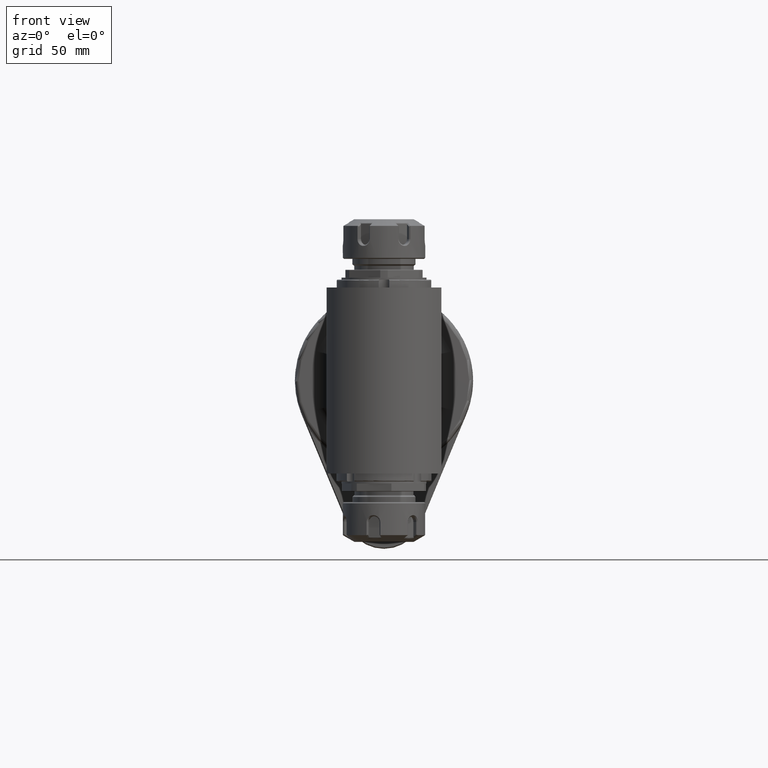
[diagram: clean part render]
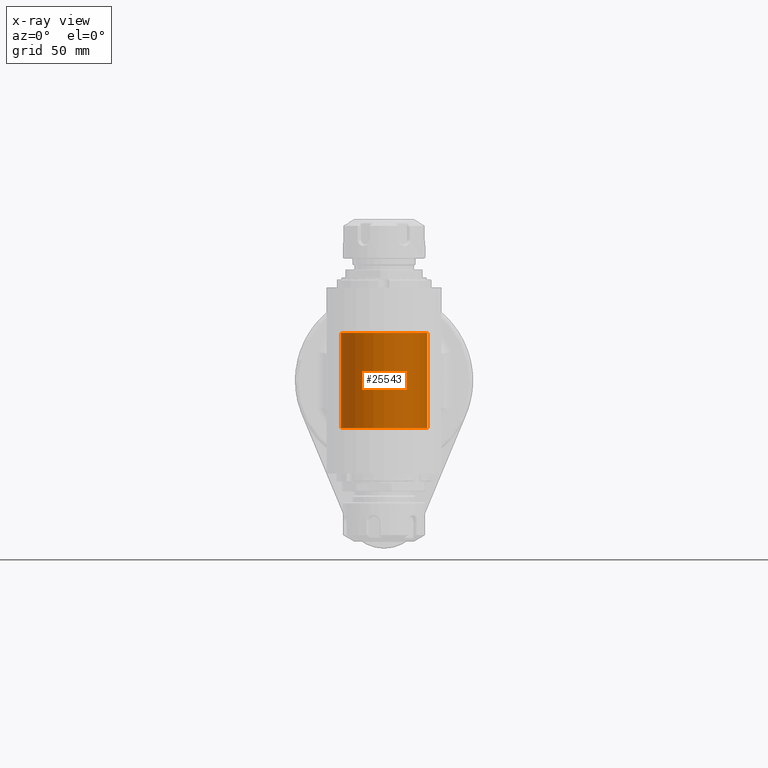
[diagram: x-ray — body ghosted, one internal face saturated and labeled with its STEP entity id]
A machine part, front view, then the same camera in x-ray: the body is ghosted and one INTERNAL B-rep face — a face not visible from any outside direction — is saturated and labeled: STEP entity #25543.
In plain terms, the highlighted cylindrical surface (bore or boss wall) has radius 22 mm, axis along (0, -0, 1).
Its self-contained STEP definition (entity closure, byte-faithful):
#1103=B_SPLINE_CURVE_WITH_KNOTS('',3,(#43034,#43035,#43036,#43037,#43038,
#43039,#43040,#43041,#43042,#43043,#43044,#43045,#43046,#43047,#43048,#43049,
#43050,#43051,#43052,#43053,#43054,#43055,#43056,#43057,#43058,#43059,#43060,
#43061),.UNSPECIFIED.,.F.,.F.,(4,2,2,2,2,2,2,2,2,2,2,2,2,4),(18.4280957581904,
18.857869010626,19.2876422630617,19.7174155154973,20.1471887679329,20.6388203034068,
21.1304518388807,21.6220833743546,21.8678991420915,22.1137149098285,22.3595306775654,
22.6053464453024,23.0969779807763,23.3397036890978),.UNSPECIFIED.);
#1104=B_SPLINE_CURVE_WITH_KNOTS('',3,(#43063,#43064,#43065,#43066,#43067,
#43068,#43069,#43070,#43071,#43072),.UNSPECIFIED.,.F.,.F.,(4,2,2,2,4),(0.369495346331702,
0.447892560772112,0.540689338723053,0.618934428753227,0.697179518783401),
 .UNSPECIFIED.);
#1105=B_SPLINE_CURVE_WITH_KNOTS('',3,(#43074,#43075,#43076,#43077,#43078,
#43079,#43080,#43081,#43082,#43083,#43084,#43085,#43086,#43087,#43088,#43089,
#43090,#43091),.UNSPECIFIED.,.F.,.F.,(4,2,2,2,2,2,2,2,4),(0.697179518783401,
0.775424608813575,0.85366969884375,0.94646647679469,1.03926325474563,1.13772719666031,
1.23619113857499,1.3152750880709,1.3515254250324),.UNSPECIFIED.);
#1106=B_SPLINE_CURVE_WITH_KNOTS('',3,(#43092,#43093,#43094,#43095,#43096,
#43097,#43098,#43099,#43100,#43101,#43102,#43103,#43104,#43105,#43106,#43107,
#43108,#43109,#43110,#43111,#43112,#43113,#43114,#43115,#43116,#43117,#43118,
#43119,#43120,#43121,#43122,#43123,#43124,#43125,#43126,#43127,#43128,#43129,
#43130,#43131,#43132,#43133,#43134,#43135,#43136,#43137,#43138,#43139,#43140),
 .UNSPECIFIED.,.F.,.F.,(4,2,2,2,2,2,2,2,2,2,2,2,2,2,3,2,2,2,2,2,2,2,2,4),
(8.95751187789359,9.33776444517176,9.76753769760738,10.197310950043,10.6270842024786,
11.0568574549142,11.4866307073499,11.9164039597855,12.3461772122211,12.7759504646567,
13.2675820001306,13.7592135356045,14.2508450710784,14.4966608388154,14.7424766065523,
14.9882923742893,15.2341081420262,15.7257396775001,16.217371212974,16.7090027484479,
17.1387760008835,17.5685492533192,17.9983225057548,18.4280957581904),
 .UNSPECIFIED.);
#2211=LINE('',#43030,#4143);
#4143=VECTOR('',#31745,22.);
#5415=CYLINDRICAL_SURFACE('',#27476,22.);
#5717=FACE_BOUND('',#7945,.T.);
#6357=FACE_OUTER_BOUND('',#7944,.T.);
#7944=EDGE_LOOP('',(#19415,#19416,#19417,#19418));
#7945=EDGE_LOOP('',(#19419,#19420,#19421,#19422));
#9268=CIRCLE('',#27475,22.);
#9269=CIRCLE('',#27477,22.);
#11043=VERTEX_POINT('',#43026);
#11044=VERTEX_POINT('',#43029);
#11045=VERTEX_POINT('',#43032);
#11046=VERTEX_POINT('',#43033);
#11047=VERTEX_POINT('',#43062);
#11048=VERTEX_POINT('',#43073);
#14099=EDGE_CURVE('',#11043,#11043,#9268,.T.);
#14100=EDGE_CURVE('',#11043,#11044,#2211,.T.);
#14101=EDGE_CURVE('',#11044,#11044,#9269,.T.);
#14102=EDGE_CURVE('',#11045,#11046,#1103,.F.);
#14103=EDGE_CURVE('',#11045,#11047,#1104,.T.);
#14104=EDGE_CURVE('',#11047,#11048,#1105,.T.);
#14105=EDGE_CURVE('',#11046,#11048,#1106,.F.);
#19415=ORIENTED_EDGE('',*,*,#14099,.F.);
#19416=ORIENTED_EDGE('',*,*,#14100,.T.);
#19417=ORIENTED_EDGE('',*,*,#14101,.T.);
#19418=ORIENTED_EDGE('',*,*,#14100,.F.);
#19419=ORIENTED_EDGE('',*,*,#14102,.F.);
#19420=ORIENTED_EDGE('',*,*,#14103,.T.);
#19421=ORIENTED_EDGE('',*,*,#14104,.T.);
#19422=ORIENTED_EDGE('',*,*,#14105,.F.);
#25543=ADVANCED_FACE('',(#6357,#5717),#5415,.F.);
#27475=AXIS2_PLACEMENT_3D('',#43027,#31741,#31742);
#27476=AXIS2_PLACEMENT_3D('',#43028,#31743,#31744);
#27477=AXIS2_PLACEMENT_3D('',#43031,#31746,#31747);
#31741=DIRECTION('center_axis',(0.,0.,1.));
#31742=DIRECTION('ref_axis',(0.,1.,0.));
#31743=DIRECTION('center_axis',(0.,0.,1.));
#31744=DIRECTION('ref_axis',(0.,1.,0.));
#31745=DIRECTION('',(0.,0.,1.));
#31746=DIRECTION('center_axis',(0.,0.,1.));
#31747=DIRECTION('ref_axis',(0.,1.,0.));
#43026=CARTESIAN_POINT('',(0.,-198.8,-24.));
#43027=CARTESIAN_POINT('Origin',(0.,-176.8,-24.));
#43028=CARTESIAN_POINT('Origin',(0.,-176.8,-52.1));
#43029=CARTESIAN_POINT('',(0.,-198.8,24.));
#43030=CARTESIAN_POINT('',(2.69422295812418E-15,-198.8,-52.1));
#43031=CARTESIAN_POINT('Origin',(0.,-176.8,24.));
#43032=CARTESIAN_POINT('',(-18.51808448192,-164.9222667516,9.903562344963));
#43033=CARTESIAN_POINT('',(9.75132970187154E-15,-154.8,-21.));
#43034=CARTESIAN_POINT('Ctrl Pts',(8.32667268468867E-15,-154.8,-21.));
#43035=CARTESIAN_POINT('Ctrl Pts',(-1.43257750811874,-154.8,-21.));
#43036=CARTESIAN_POINT('Ctrl Pts',(-2.88130471334021,-154.942218548739,
-20.8511534466419));
#43037=CARTESIAN_POINT('Ctrl Pts',(-5.6998168365524,-155.502661790368,-20.2628873781902));
#43038=CARTESIAN_POINT('Ctrl Pts',(-7.06970330485272,-155.920640315871,
-19.823719945534));
#43039=CARTESIAN_POINT('Ctrl Pts',(-9.63896366302139,-156.975300326901,
-18.7096480380301));
#43040=CARTESIAN_POINT('Ctrl Pts',(-10.8415973515438,-157.6129581876,-18.033686314346));
#43041=CARTESIAN_POINT('Ctrl Pts',(-13.0213573397773,-159.020037695216,
-16.5287122337865));
#43042=CARTESIAN_POINT('Ctrl Pts',(-13.9986865477404,-159.789250222618,
-15.6997982620946));
#43043=CARTESIAN_POINT('Ctrl Pts',(-15.8222207829354,-161.457372600008,
-13.8762640268996));
#43044=CARTESIAN_POINT('Ctrl Pts',(-16.6999358844457,-162.424148849774,
-12.8052262917104));
#43045=CARTESIAN_POINT('Ctrl Pts',(-18.2165250485513,-164.401969177033,
-10.5365978853863));
#43046=CARTESIAN_POINT('Ctrl Pts',(-18.8558268150495,-165.414047403387,
-9.34019501457614));
#43047=CARTESIAN_POINT('Ctrl Pts',(-19.8866044074878,-167.328723083398,
-6.87782036853914));
#43048=CARTESIAN_POINT('Ctrl Pts',(-20.2762759788724,-168.228546182962,
-5.628067733155));
#43049=CARTESIAN_POINT('Ctrl Pts',(-20.6899585184566,-169.311667890072,
-3.65732346627147));
#43050=CARTESIAN_POINT('Ctrl Pts',(-20.7989671498641,-169.626223700477,
-2.98536157326437));
#43051=CARTESIAN_POINT('Ctrl Pts',(-20.9536658854551,-170.091498582302,
-1.56630126771824));
#43052=CARTESIAN_POINT('Ctrl Pts',(-21.,-170.242561475698,-0.819385892456506));
#43053=CARTESIAN_POINT('Ctrl Pts',(-21.,-170.242561475698,0.819385892456488));
#43054=CARTESIAN_POINT('Ctrl Pts',(-20.9536658854551,-170.091498582302,
1.56630126771822));
#43055=CARTESIAN_POINT('Ctrl Pts',(-20.7989671498641,-169.626223700477,
2.98536157326436));
#43056=CARTESIAN_POINT('Ctrl Pts',(-20.6899585184566,-169.311667890072,
3.65732346627146));
#43057=CARTESIAN_POINT('Ctrl Pts',(-20.2762759788725,-168.228546182962,
5.628067733155));
#43058=CARTESIAN_POINT('Ctrl Pts',(-19.8866044074878,-167.328723083398,
6.87782036853914));
#43059=CARTESIAN_POINT('Ctrl Pts',(-19.1167605944588,-165.898733493959,
8.71686295203867));
#43060=CARTESIAN_POINT('Ctrl Pts',(-18.8323477190864,-165.412221615338,
9.31594013663489));
#43061=CARTESIAN_POINT('Ctrl Pts',(-18.5180844819221,-164.92226675159,9.90356234495427));
#43062=CARTESIAN_POINT('',(-19.6466282094409,-166.9,12.));
#43063=CARTESIAN_POINT('Ctrl Pts',(-18.5180844819262,-164.922266751596,
9.90356234496369));
#43064=CARTESIAN_POINT('Ctrl Pts',(-18.6620730624297,-165.146753414365,
9.91665467564543));
#43065=CARTESIAN_POINT('Ctrl Pts',(-18.8080968074024,-165.384044689117,
9.96811307339966));
#43066=CARTESIAN_POINT('Ctrl Pts',(-19.0988952664716,-165.876253786661,
10.1737238745347));
#43067=CARTESIAN_POINT('Ctrl Pts',(-19.2385414542677,-166.126207028473,
10.3461503291637));
#43068=CARTESIAN_POINT('Ctrl Pts',(-19.4373721948244,-166.493445841168,
10.7343012133126));
#43069=CARTESIAN_POINT('Ctrl Pts',(-19.5162966237199,-166.644841769695,
10.9607658364343));
#43070=CARTESIAN_POINT('Ctrl Pts',(-19.6207927880983,-166.848238218245,
11.4631858751253));
#43071=CARTESIAN_POINT('Ctrl Pts',(-19.6466282094409,-166.9,11.7391830332328));
#43072=CARTESIAN_POINT('Ctrl Pts',(-19.6466282094409,-166.9,12.));
#43073=CARTESIAN_POINT('',(-16.92491679811,-162.7448517839,12.4317010653));
#43074=CARTESIAN_POINT('Ctrl Pts',(-19.6466282094409,-166.9,12.));
#43075=CARTESIAN_POINT('Ctrl Pts',(-19.6466282094409,-166.9,12.2608169667672));
#43076=CARTESIAN_POINT('Ctrl Pts',(-19.6207927880983,-166.848238218245,
12.5368141248747));
#43077=CARTESIAN_POINT('Ctrl Pts',(-19.5162966237199,-166.644841769695,
13.0392341635657));
#43078=CARTESIAN_POINT('Ctrl Pts',(-19.4373721948244,-166.493445841168,
13.2656987866874));
#43079=CARTESIAN_POINT('Ctrl Pts',(-19.2385414542677,-166.126207028473,
13.6538496708363));
#43080=CARTESIAN_POINT('Ctrl Pts',(-19.0988952664716,-165.876253786661,
13.8262761254653));
#43081=CARTESIAN_POINT('Ctrl Pts',(-18.7836370070225,-165.342643726025,
14.0491813757106));
#43082=CARTESIAN_POINT('Ctrl Pts',(-18.607810329042,-165.059255763579,14.1));
#43083=CARTESIAN_POINT('Ctrl Pts',(-18.26006356565,-164.524911306084,14.1));
#43084=CARTESIAN_POINT('Ctrl Pts',(-18.0609212521754,-164.233674452456,
14.0432820426752));
#43085=CARTESIAN_POINT('Ctrl Pts',(-17.6749638774587,-163.696372022039,
13.8104505924012));
#43086=CARTESIAN_POINT('Ctrl Pts',(-17.4883243829603,-163.45007146444,13.6345884907052));
#43087=CARTESIAN_POINT('Ctrl Pts',(-17.2116834519187,-163.096058918375,
13.2493570181616));
#43088=CARTESIAN_POINT('Ctrl Pts',(-17.0944788097148,-162.950984666217,
13.0303581237285));
#43089=CARTESIAN_POINT('Ctrl Pts',(-16.9759555554682,-162.806416275051,
12.6711449962292));
#43090=CARTESIAN_POINT('Ctrl Pts',(-16.9460027232393,-162.77024301583,12.5525781009157));
#43091=CARTESIAN_POINT('Ctrl Pts',(-16.9249167981099,-162.744851783882,
12.431701065305));
#43092=CARTESIAN_POINT('Ctrl Pts',(-16.9249167981161,-162.744851783889,
12.4317010652947));
#43093=CARTESIAN_POINT('Ctrl Pts',(-16.2977937241821,-161.989683237438,
13.2854865442701));
#43094=CARTESIAN_POINT('Ctrl Pts',(-15.6017928404603,-161.255730768257,
14.0966919693747));
#43095=CARTESIAN_POINT('Ctrl Pts',(-13.9986865477404,-159.789250222618,
15.6997982620946));
#43096=CARTESIAN_POINT('Ctrl Pts',(-13.0213573397773,-159.020037695216,
16.5287122337865));
#43097=CARTESIAN_POINT('Ctrl Pts',(-10.8415973515439,-157.6129581876,18.033686314346));
#43098=CARTESIAN_POINT('Ctrl Pts',(-9.6389636630214,-156.975300326901,18.7096480380301));
#43099=CARTESIAN_POINT('Ctrl Pts',(-7.06970330485273,-155.920640315871,
19.823719945534));
#43100=CARTESIAN_POINT('Ctrl Pts',(-5.69981683655242,-155.502661790368,
20.2628873781902));
#43101=CARTESIAN_POINT('Ctrl Pts',(-2.88130471334023,-154.942218548739,
20.8511534466419));
#43102=CARTESIAN_POINT('Ctrl Pts',(-1.43257750811874,-154.8,21.));
#43103=CARTESIAN_POINT('Ctrl Pts',(1.43257750811873,-154.8,21.));
#43104=CARTESIAN_POINT('Ctrl Pts',(2.88130471334021,-154.942218548739,20.8511534466419));
#43105=CARTESIAN_POINT('Ctrl Pts',(5.69981683655239,-155.502661790368,20.2628873781902));
#43106=CARTESIAN_POINT('Ctrl Pts',(7.06970330485271,-155.920640315871,19.823719945534));
#43107=CARTESIAN_POINT('Ctrl Pts',(9.63896366302138,-156.975300326901,18.7096480380301));
#43108=CARTESIAN_POINT('Ctrl Pts',(10.8415973515438,-157.6129581876,18.033686314346));
#43109=CARTESIAN_POINT('Ctrl Pts',(13.0213573397773,-159.020037695216,16.5287122337865));
#43110=CARTESIAN_POINT('Ctrl Pts',(13.9986865477404,-159.789250222618,15.6997982620946));
#43111=CARTESIAN_POINT('Ctrl Pts',(15.8222207829354,-161.457372600008,13.8762640268996));
#43112=CARTESIAN_POINT('Ctrl Pts',(16.6999358844457,-162.424148849774,12.8052262917104));
#43113=CARTESIAN_POINT('Ctrl Pts',(18.2165250485513,-164.401969177033,10.5365978853863));
#43114=CARTESIAN_POINT('Ctrl Pts',(18.8558268150495,-165.414047403387,9.34019501457613));
#43115=CARTESIAN_POINT('Ctrl Pts',(19.8866044074878,-167.328723083398,6.87782036853914));
#43116=CARTESIAN_POINT('Ctrl Pts',(20.2762759788725,-168.228546182962,5.628067733155));
#43117=CARTESIAN_POINT('Ctrl Pts',(20.6899585184566,-169.311667890072,3.65732346627146));
#43118=CARTESIAN_POINT('Ctrl Pts',(20.7989671498641,-169.626223700477,2.98536157326437));
#43119=CARTESIAN_POINT('Ctrl Pts',(20.9536658854551,-170.091498582302,1.56630126771823));
#43120=CARTESIAN_POINT('Ctrl Pts',(21.,-170.242561475698,0.81938589245649));
#43121=CARTESIAN_POINT('Ctrl Pts',(21.,-170.242561475698,-8.88178419700125E-15));
#43122=CARTESIAN_POINT('Ctrl Pts',(21.,-170.242561475698,-0.819385892456506));
#43123=CARTESIAN_POINT('Ctrl Pts',(20.9536658854551,-170.091498582302,-1.56630126771824));
#43124=CARTESIAN_POINT('Ctrl Pts',(20.7989671498641,-169.626223700477,-2.98536157326439));
#43125=CARTESIAN_POINT('Ctrl Pts',(20.6899585184566,-169.311667890072,-3.65732346627147));
#43126=CARTESIAN_POINT('Ctrl Pts',(20.2762759788725,-168.228546182962,-5.628067733155));
#43127=CARTESIAN_POINT('Ctrl Pts',(19.8866044074878,-167.328723083398,-6.87782036853914));
#43128=CARTESIAN_POINT('Ctrl Pts',(18.8558268150495,-165.414047403387,-9.34019501457614));
#43129=CARTESIAN_POINT('Ctrl Pts',(18.2165250485513,-164.401969177033,-10.5365978853863));
#43130=CARTESIAN_POINT('Ctrl Pts',(16.6999358844457,-162.424148849774,-12.8052262917104));
#43131=CARTESIAN_POINT('Ctrl Pts',(15.8222207829354,-161.457372600008,-13.8762640268996));
#43132=CARTESIAN_POINT('Ctrl Pts',(13.9986865477404,-159.789250222618,-15.6997982620946));
#43133=CARTESIAN_POINT('Ctrl Pts',(13.0213573397773,-159.020037695216,-16.5287122337865));
#43134=CARTESIAN_POINT('Ctrl Pts',(10.8415973515438,-157.6129581876,-18.033686314346));
#43135=CARTESIAN_POINT('Ctrl Pts',(9.63896366302139,-156.975300326901,-18.7096480380301));
#43136=CARTESIAN_POINT('Ctrl Pts',(7.06970330485272,-155.920640315871,-19.823719945534));
#43137=CARTESIAN_POINT('Ctrl Pts',(5.6998168365524,-155.502661790368,-20.2628873781902));
#43138=CARTESIAN_POINT('Ctrl Pts',(2.88130471334022,-154.942218548739,-20.8511534466419));
#43139=CARTESIAN_POINT('Ctrl Pts',(1.43257750811874,-154.8,-21.));
#43140=CARTESIAN_POINT('Ctrl Pts',(8.32667268468867E-15,-154.8,-21.));